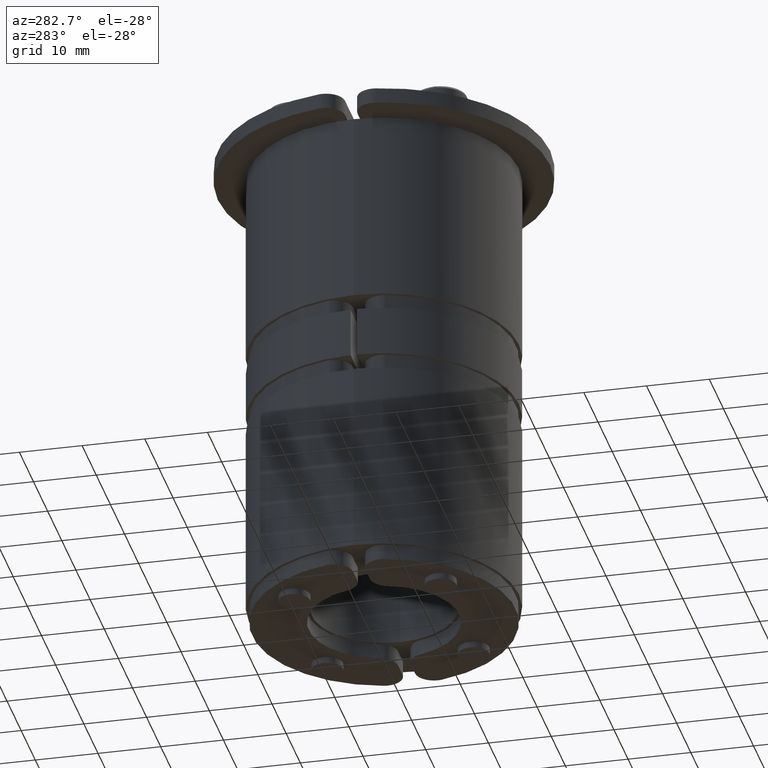
[diagram: clean part render]
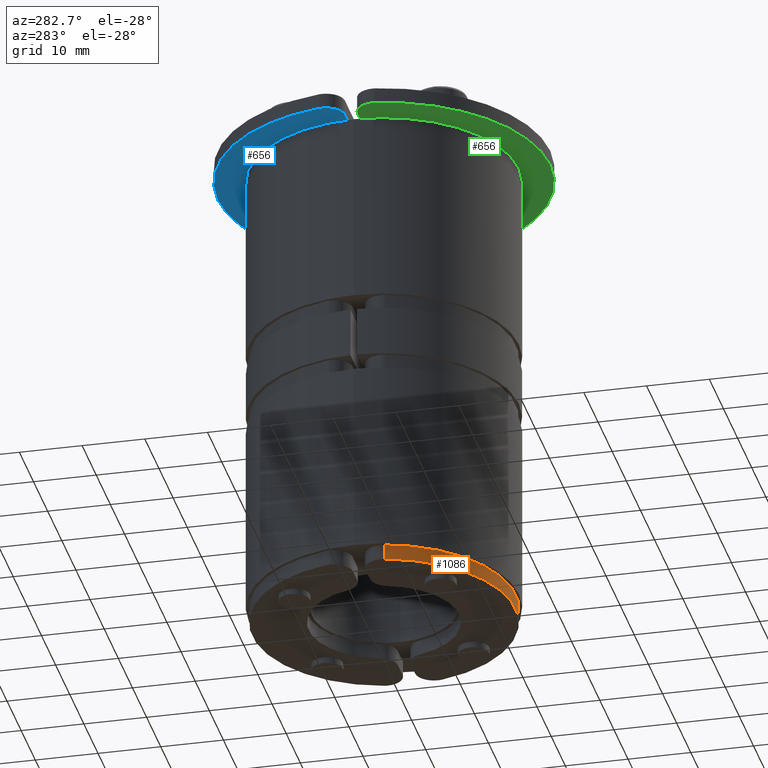
[diagram: same view with three faces highlighted in distinct colors, each labeled with its STEP entity id]
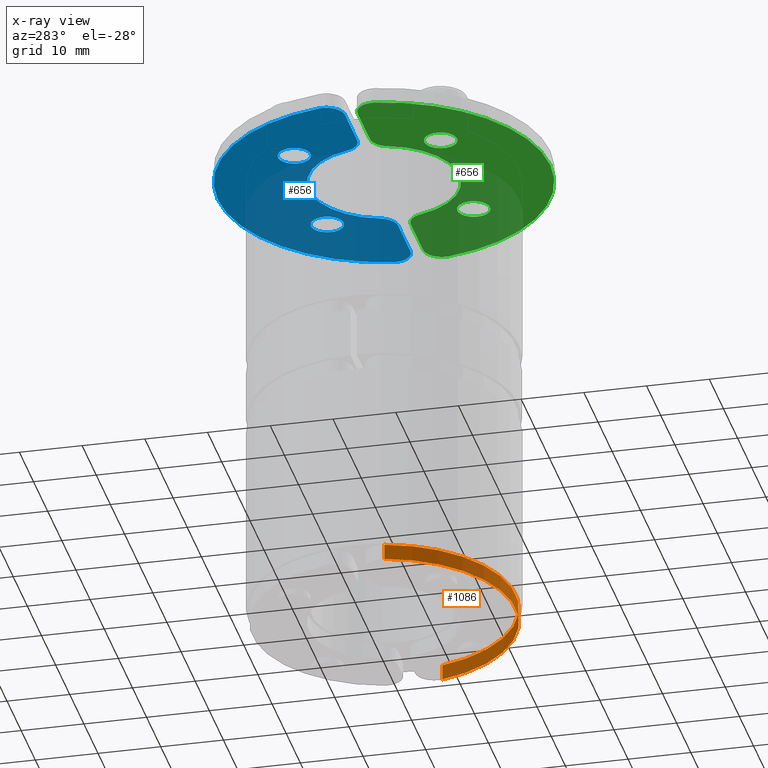
[diagram: x-ray of the same camera — body ghosted, the three highlighted faces saturated]
A machine part, auxiliary view with three faces highlighted in distinct colors.
The next image is the same camera in x-ray (body ghosted, the three faces saturated) — at least one of them is partly hidden behind the body in this view.
Their STEP definitions:

[orange] entity #1086 — the highlighted cylindrical surface (partial cylindrical patch) has radius 21 mm, axis along (0, 0, 1).
#699=CARTESIAN_POINT('',(20.474916903914931,-6.333333333333329,-1.250000000000000));
#700=VERTEX_POINT('',#699);
#708=CARTESIAN_POINT('',(20.474916903914931,-6.333333333333329,1.250000000000000));
#709=VERTEX_POINT('',#708);
#710=CARTESIAN_POINT('',(20.474916903914931,-6.333333333333329,-1.250000000000000));
#711=DIRECTION('',(0.0,0.0,1.0));
#712=VECTOR('',#711,2.500000000000000);
#713=LINE('',#710,#712);
#714=EDGE_CURVE('',#700,#709,#713,.T.);
#741=CARTESIAN_POINT('',(-20.474916903914959,-6.333333333333322,1.250000000000000));
#742=VERTEX_POINT('',#741);
#750=CARTESIAN_POINT('',(-20.474916903914959,-6.333333333333322,-1.250000000000000));
#751=VERTEX_POINT('',#750);
#752=CARTESIAN_POINT('',(-20.474916903914959,-6.333333333333322,-1.250000000000000));
#753=DIRECTION('',(0.0,0.0,1.0));
#754=VECTOR('',#753,2.500000000000000);
#755=LINE('',#752,#754);
#756=EDGE_CURVE('',#751,#742,#755,.T.);
#1063=CARTESIAN_POINT('',(0.0,-10.999999999999993,-1.250000000000000));
#1064=DIRECTION('',(0.0,0.0,1.0));
#1065=DIRECTION('',(1.0,0.0,0.0));
#1066=AXIS2_PLACEMENT_3D('',#1063,#1064,#1065);
#1067=CYLINDRICAL_SURFACE('',#1066,21.0);
#1068=CARTESIAN_POINT('',(0.0,-10.999999999999993,1.250000000000000));
#1069=DIRECTION('',(0.0,0.0,-1.0));
#1070=DIRECTION('',(1.0,0.0,0.0));
#1071=AXIS2_PLACEMENT_3D('',#1068,#1069,#1070);
#1072=CIRCLE('',#1071,21.0);
#1073=EDGE_CURVE('',#742,#709,#1072,.T.);
#1074=ORIENTED_EDGE('',*,*,#1073,.T.);
#1075=ORIENTED_EDGE('',*,*,#714,.F.);
#1076=CARTESIAN_POINT('',(0.0,-10.999999999999993,-1.250000000000000));
#1077=DIRECTION('',(0.0,0.0,1.0));
#1078=DIRECTION('',(1.0,0.0,0.0));
#1079=AXIS2_PLACEMENT_3D('',#1076,#1077,#1078);
#1080=CIRCLE('',#1079,21.0);
#1081=EDGE_CURVE('',#700,#751,#1080,.T.);
#1082=ORIENTED_EDGE('',*,*,#1081,.T.);
#1083=ORIENTED_EDGE('',*,*,#756,.T.);
#1084=EDGE_LOOP('',(#1074,#1075,#1082,#1083));
#1085=FACE_OUTER_BOUND('',#1084,.T.);
#1086=ADVANCED_FACE('',(#1085),#1067,.T.);

[blue] entity #656 — the highlighted planar face has unit normal (0, 0, 1).
#152=CARTESIAN_POINT('',(26.157072353818819,-9.750000000000000,-1.250000000000000));
#153=VERTEX_POINT('',#152);
#162=CARTESIAN_POINT('',(26.113294356433983,-9.239361702127660,-1.250000000000000));
#163=VERTEX_POINT('',#162);
#164=CARTESIAN_POINT('',(23.157072353818819,-9.750000000000000,-1.250000000000000));
#165=DIRECTION('',(0.0,0.0,1.0));
#166=DIRECTION('',(1.0,0.0,0.0));
#167=AXIS2_PLACEMENT_3D('',#164,#165,#166);
#168=CIRCLE('',#167,3.0);
#169=EDGE_CURVE('',#153,#163,#168,.T.);
#196=CARTESIAN_POINT('',(-26.157072353818819,-9.750000000000000,-1.250000000000000));
#197=VERTEX_POINT('',#196);
#213=CARTESIAN_POINT('',(-26.113294356433983,-9.239361702127653,-1.250000000000000));
#214=VERTEX_POINT('',#213);
#221=CARTESIAN_POINT('',(-23.157072353818819,-9.750000000000000,-1.250000000000000));
#222=DIRECTION('',(0.0,0.0,1.0));
#223=DIRECTION('',(1.0,0.0,0.0));
#224=AXIS2_PLACEMENT_3D('',#221,#222,#223);
#225=CIRCLE('',#224,3.0);
#226=EDGE_CURVE('',#214,#197,#225,.T.);
#236=CARTESIAN_POINT('',(-9.067261889578036,-2.082738110421968,-1.250000000000000));
#237=VERTEX_POINT('',#236);
#246=CARTESIAN_POINT('',(-14.267261889578036,-2.082738110421968,-1.250000000000000));
#247=VERTEX_POINT('',#246);
#248=CARTESIAN_POINT('',(-11.667261889578036,-2.082738110421968,-1.250000000000000));
#249=DIRECTION('',(0.0,0.0,1.0));
#250=DIRECTION('',(1.0,0.0,0.0));
#251=AXIS2_PLACEMENT_3D('',#248,#249,#250);
#252=CIRCLE('',#251,2.600000000000000);
#253=EDGE_CURVE('',#247,#237,#252,.T.);
#278=CARTESIAN_POINT('',(14.267261889578032,-2.082738110421966,-1.250000000000000));
#279=VERTEX_POINT('',#278);
#288=CARTESIAN_POINT('',(9.067261889578033,-2.082738110421966,-1.250000000000000));
#289=VERTEX_POINT('',#288);
#290=CARTESIAN_POINT('',(11.667261889578032,-2.082738110421966,-1.250000000000000));
#291=DIRECTION('',(0.0,0.0,1.0));
#292=DIRECTION('',(1.0,0.0,0.0));
#293=AXIS2_PLACEMENT_3D('',#290,#291,#292);
#294=CIRCLE('',#293,2.600000000000000);
#295=EDGE_CURVE('',#289,#279,#294,.T.);
#329=CARTESIAN_POINT('',(11.667261889578032,-2.082738110421966,-1.250000000000000));
#330=DIRECTION('',(0.0,0.0,1.0));
#331=DIRECTION('',(1.0,0.0,0.0));
#332=AXIS2_PLACEMENT_3D('',#329,#330,#331);
#333=CIRCLE('',#332,2.600000000000000);
#334=EDGE_CURVE('',#279,#289,#333,.T.);
#353=CARTESIAN_POINT('',(-11.667261889578036,-2.082738110421968,-1.250000000000000));
#354=DIRECTION('',(0.0,0.0,1.0));
#355=DIRECTION('',(1.0,0.0,0.0));
#356=AXIS2_PLACEMENT_3D('',#353,#354,#355);
#357=CIRCLE('',#356,2.600000000000000);
#358=EDGE_CURVE('',#237,#247,#357,.T.);
#379=CARTESIAN_POINT('',(11.565465835840769,-10.549999999999997,-1.250000000000000));
#380=VERTEX_POINT('',#379);
#387=CARTESIAN_POINT('',(14.456832294800961,-12.750000000000000,-1.250000000000000));
#388=VERTEX_POINT('',#387);
#389=CARTESIAN_POINT('',(14.456832294800961,-9.750000000000000,-1.250000000000000));
#390=DIRECTION('',(0.0,0.0,1.0));
#391=DIRECTION('',(1.0,0.0,0.0));
#392=AXIS2_PLACEMENT_3D('',#389,#390,#391);
#393=CIRCLE('',#392,3.0);
#394=EDGE_CURVE('',#380,#388,#393,.T.);
#419=CARTESIAN_POINT('',(-11.565465835840769,-10.549999999999997,-1.250000000000000));
#420=VERTEX_POINT('',#419);
#427=CARTESIAN_POINT('',(0.0,-13.750000000000000,-1.250000000000000));
#428=DIRECTION('',(0.0,0.0,-1.0));
#429=DIRECTION('',(1.0,0.0,0.0));
#430=AXIS2_PLACEMENT_3D('',#427,#428,#429);
#431=CIRCLE('',#430,12.0);
#432=EDGE_CURVE('',#420,#380,#431,.T.);
#452=CARTESIAN_POINT('',(-14.456832294800961,-12.750000000000000,-1.250000000000000));
#453=VERTEX_POINT('',#452);
#460=CARTESIAN_POINT('',(-14.456832294800961,-9.750000000000000,-1.250000000000000));
#461=DIRECTION('',(0.0,0.0,1.0));
#462=DIRECTION('',(1.0,0.0,0.0));
#463=AXIS2_PLACEMENT_3D('',#460,#461,#462);
#464=CIRCLE('',#463,3.0);
#465=EDGE_CURVE('',#453,#420,#464,.T.);
#484=CARTESIAN_POINT('',(-23.157072353818819,-12.750000000000000,-1.250000000000000));
#485=VERTEX_POINT('',#484);
#492=CARTESIAN_POINT('',(-23.157072353818819,-12.750000000000000,-1.250000000000000));
#493=DIRECTION('',(1.0,0.0,0.0));
#494=VECTOR('',#493,8.700240059017858);
#495=LINE('',#492,#494);
#496=EDGE_CURVE('',#485,#453,#495,.T.);
#508=CARTESIAN_POINT('',(-23.157072353818819,-9.750000000000000,-1.250000000000000));
#509=DIRECTION('',(0.0,0.0,1.0));
#510=DIRECTION('',(1.0,0.0,0.0));
#511=AXIS2_PLACEMENT_3D('',#508,#509,#510);
#512=CIRCLE('',#511,3.0);
#513=EDGE_CURVE('',#197,#485,#512,.T.);
#539=CARTESIAN_POINT('',(0.0,-13.750000000000000,-1.250000000000000));
#540=DIRECTION('',(0.0,0.0,1.0));
#541=DIRECTION('',(1.0,0.0,0.0));
#542=AXIS2_PLACEMENT_3D('',#539,#540,#541);
#543=CIRCLE('',#542,26.500000000000000);
#544=EDGE_CURVE('',#163,#214,#543,.T.);
#565=CARTESIAN_POINT('',(23.157072353818791,-12.750000000000000,-1.250000000000000));
#566=VERTEX_POINT('',#565);
#573=CARTESIAN_POINT('',(23.157072353818819,-9.750000000000000,-1.250000000000000));
#574=DIRECTION('',(0.0,0.0,1.0));
#575=DIRECTION('',(1.0,0.0,0.0));
#576=AXIS2_PLACEMENT_3D('',#573,#574,#575);
#577=CIRCLE('',#576,3.0);
#578=EDGE_CURVE('',#566,#153,#577,.T.);
#595=CARTESIAN_POINT('',(14.456832294800961,-12.750000000000000,-1.250000000000000));
#596=DIRECTION('',(1.0,0.0,0.0));
#597=VECTOR('',#596,8.700240059017830);
#598=LINE('',#595,#597);
#599=EDGE_CURVE('',#388,#566,#598,.T.);
#631=CARTESIAN_POINT('',(-1.136868E-013,-2.432917308728335,-1.250000000000000));
#632=DIRECTION('',(0.0,0.0,1.0));
#633=DIRECTION('',(1.0,0.0,0.0));
#634=AXIS2_PLACEMENT_3D('',#631,#632,#633);
#635=PLANE('',#634);
#636=ORIENTED_EDGE('',*,*,#599,.F.);
#637=ORIENTED_EDGE('',*,*,#394,.F.);
#638=ORIENTED_EDGE('',*,*,#432,.F.);
#639=ORIENTED_EDGE('',*,*,#465,.F.);
#640=ORIENTED_EDGE('',*,*,#496,.F.);
#641=ORIENTED_EDGE('',*,*,#513,.F.);
#642=ORIENTED_EDGE('',*,*,#226,.F.);
#643=ORIENTED_EDGE('',*,*,#544,.F.);
#644=ORIENTED_EDGE('',*,*,#169,.F.);
#645=ORIENTED_EDGE('',*,*,#578,.F.);
#646=EDGE_LOOP('',(#636,#637,#638,#639,#640,#641,#642,#643,#644,#645));
#647=FACE_OUTER_BOUND('',#646,.T.);
#648=ORIENTED_EDGE('',*,*,#334,.T.);
#649=ORIENTED_EDGE('',*,*,#295,.T.);
#650=EDGE_LOOP('',(#648,#649));
#651=FACE_BOUND('',#650,.T.);
#652=ORIENTED_EDGE('',*,*,#358,.T.);
#653=ORIENTED_EDGE('',*,*,#253,.T.);
#654=EDGE_LOOP('',(#652,#653));
#655=FACE_BOUND('',#654,.T.);
#656=ADVANCED_FACE('',(#647,#651,#655),#635,.F.);

[green] entity #656 — the highlighted planar face has unit normal (0, 0, 1).
#152=CARTESIAN_POINT('',(26.157072353818819,-9.750000000000000,-1.250000000000000));
#153=VERTEX_POINT('',#152);
#162=CARTESIAN_POINT('',(26.113294356433983,-9.239361702127660,-1.250000000000000));
#163=VERTEX_POINT('',#162);
#164=CARTESIAN_POINT('',(23.157072353818819,-9.750000000000000,-1.250000000000000));
#165=DIRECTION('',(0.0,0.0,1.0));
#166=DIRECTION('',(1.0,0.0,0.0));
#167=AXIS2_PLACEMENT_3D('',#164,#165,#166);
#168=CIRCLE('',#167,3.0);
#169=EDGE_CURVE('',#153,#163,#168,.T.);
#196=CARTESIAN_POINT('',(-26.157072353818819,-9.750000000000000,-1.250000000000000));
#197=VERTEX_POINT('',#196);
#213=CARTESIAN_POINT('',(-26.113294356433983,-9.239361702127653,-1.250000000000000));
#214=VERTEX_POINT('',#213);
#221=CARTESIAN_POINT('',(-23.157072353818819,-9.750000000000000,-1.250000000000000));
#222=DIRECTION('',(0.0,0.0,1.0));
#223=DIRECTION('',(1.0,0.0,0.0));
#224=AXIS2_PLACEMENT_3D('',#221,#222,#223);
#225=CIRCLE('',#224,3.0);
#226=EDGE_CURVE('',#214,#197,#225,.T.);
#236=CARTESIAN_POINT('',(-9.067261889578036,-2.082738110421968,-1.250000000000000));
#237=VERTEX_POINT('',#236);
#246=CARTESIAN_POINT('',(-14.267261889578036,-2.082738110421968,-1.250000000000000));
#247=VERTEX_POINT('',#246);
#248=CARTESIAN_POINT('',(-11.667261889578036,-2.082738110421968,-1.250000000000000));
#249=DIRECTION('',(0.0,0.0,1.0));
#250=DIRECTION('',(1.0,0.0,0.0));
#251=AXIS2_PLACEMENT_3D('',#248,#249,#250);
#252=CIRCLE('',#251,2.600000000000000);
#253=EDGE_CURVE('',#247,#237,#252,.T.);
#278=CARTESIAN_POINT('',(14.267261889578032,-2.082738110421966,-1.250000000000000));
#279=VERTEX_POINT('',#278);
#288=CARTESIAN_POINT('',(9.067261889578033,-2.082738110421966,-1.250000000000000));
#289=VERTEX_POINT('',#288);
#290=CARTESIAN_POINT('',(11.667261889578032,-2.082738110421966,-1.250000000000000));
#291=DIRECTION('',(0.0,0.0,1.0));
#292=DIRECTION('',(1.0,0.0,0.0));
#293=AXIS2_PLACEMENT_3D('',#290,#291,#292);
#294=CIRCLE('',#293,2.600000000000000);
#295=EDGE_CURVE('',#289,#279,#294,.T.);
#329=CARTESIAN_POINT('',(11.667261889578032,-2.082738110421966,-1.250000000000000));
#330=DIRECTION('',(0.0,0.0,1.0));
#331=DIRECTION('',(1.0,0.0,0.0));
#332=AXIS2_PLACEMENT_3D('',#329,#330,#331);
#333=CIRCLE('',#332,2.600000000000000);
#334=EDGE_CURVE('',#279,#289,#333,.T.);
#353=CARTESIAN_POINT('',(-11.667261889578036,-2.082738110421968,-1.250000000000000));
#354=DIRECTION('',(0.0,0.0,1.0));
#355=DIRECTION('',(1.0,0.0,0.0));
#356=AXIS2_PLACEMENT_3D('',#353,#354,#355);
#357=CIRCLE('',#356,2.600000000000000);
#358=EDGE_CURVE('',#237,#247,#357,.T.);
#379=CARTESIAN_POINT('',(11.565465835840769,-10.549999999999997,-1.250000000000000));
#380=VERTEX_POINT('',#379);
#387=CARTESIAN_POINT('',(14.456832294800961,-12.750000000000000,-1.250000000000000));
#388=VERTEX_POINT('',#387);
#389=CARTESIAN_POINT('',(14.456832294800961,-9.750000000000000,-1.250000000000000));
#390=DIRECTION('',(0.0,0.0,1.0));
#391=DIRECTION('',(1.0,0.0,0.0));
#392=AXIS2_PLACEMENT_3D('',#389,#390,#391);
#393=CIRCLE('',#392,3.0);
#394=EDGE_CURVE('',#380,#388,#393,.T.);
#419=CARTESIAN_POINT('',(-11.565465835840769,-10.549999999999997,-1.250000000000000));
#420=VERTEX_POINT('',#419);
#427=CARTESIAN_POINT('',(0.0,-13.750000000000000,-1.250000000000000));
#428=DIRECTION('',(0.0,0.0,-1.0));
#429=DIRECTION('',(1.0,0.0,0.0));
#430=AXIS2_PLACEMENT_3D('',#427,#428,#429);
#431=CIRCLE('',#430,12.0);
#432=EDGE_CURVE('',#420,#380,#431,.T.);
#452=CARTESIAN_POINT('',(-14.456832294800961,-12.750000000000000,-1.250000000000000));
#453=VERTEX_POINT('',#452);
#460=CARTESIAN_POINT('',(-14.456832294800961,-9.750000000000000,-1.250000000000000));
#461=DIRECTION('',(0.0,0.0,1.0));
#462=DIRECTION('',(1.0,0.0,0.0));
#463=AXIS2_PLACEMENT_3D('',#460,#461,#462);
#464=CIRCLE('',#463,3.0);
#465=EDGE_CURVE('',#453,#420,#464,.T.);
#484=CARTESIAN_POINT('',(-23.157072353818819,-12.750000000000000,-1.250000000000000));
#485=VERTEX_POINT('',#484);
#492=CARTESIAN_POINT('',(-23.157072353818819,-12.750000000000000,-1.250000000000000));
#493=DIRECTION('',(1.0,0.0,0.0));
#494=VECTOR('',#493,8.700240059017858);
#495=LINE('',#492,#494);
#496=EDGE_CURVE('',#485,#453,#495,.T.);
#508=CARTESIAN_POINT('',(-23.157072353818819,-9.750000000000000,-1.250000000000000));
#509=DIRECTION('',(0.0,0.0,1.0));
#510=DIRECTION('',(1.0,0.0,0.0));
#511=AXIS2_PLACEMENT_3D('',#508,#509,#510);
#512=CIRCLE('',#511,3.0);
#513=EDGE_CURVE('',#197,#485,#512,.T.);
#539=CARTESIAN_POINT('',(0.0,-13.750000000000000,-1.250000000000000));
#540=DIRECTION('',(0.0,0.0,1.0));
#541=DIRECTION('',(1.0,0.0,0.0));
#542=AXIS2_PLACEMENT_3D('',#539,#540,#541);
#543=CIRCLE('',#542,26.500000000000000);
#544=EDGE_CURVE('',#163,#214,#543,.T.);
#565=CARTESIAN_POINT('',(23.157072353818791,-12.750000000000000,-1.250000000000000));
#566=VERTEX_POINT('',#565);
#573=CARTESIAN_POINT('',(23.157072353818819,-9.750000000000000,-1.250000000000000));
#574=DIRECTION('',(0.0,0.0,1.0));
#575=DIRECTION('',(1.0,0.0,0.0));
#576=AXIS2_PLACEMENT_3D('',#573,#574,#575);
#577=CIRCLE('',#576,3.0);
#578=EDGE_CURVE('',#566,#153,#577,.T.);
#595=CARTESIAN_POINT('',(14.456832294800961,-12.750000000000000,-1.250000000000000));
#596=DIRECTION('',(1.0,0.0,0.0));
#597=VECTOR('',#596,8.700240059017830);
#598=LINE('',#595,#597);
#599=EDGE_CURVE('',#388,#566,#598,.T.);
#631=CARTESIAN_POINT('',(-1.136868E-013,-2.432917308728335,-1.250000000000000));
#632=DIRECTION('',(0.0,0.0,1.0));
#633=DIRECTION('',(1.0,0.0,0.0));
#634=AXIS2_PLACEMENT_3D('',#631,#632,#633);
#635=PLANE('',#634);
#636=ORIENTED_EDGE('',*,*,#599,.F.);
#637=ORIENTED_EDGE('',*,*,#394,.F.);
#638=ORIENTED_EDGE('',*,*,#432,.F.);
#639=ORIENTED_EDGE('',*,*,#465,.F.);
#640=ORIENTED_EDGE('',*,*,#496,.F.);
#641=ORIENTED_EDGE('',*,*,#513,.F.);
#642=ORIENTED_EDGE('',*,*,#226,.F.);
#643=ORIENTED_EDGE('',*,*,#544,.F.);
#644=ORIENTED_EDGE('',*,*,#169,.F.);
#645=ORIENTED_EDGE('',*,*,#578,.F.);
#646=EDGE_LOOP('',(#636,#637,#638,#639,#640,#641,#642,#643,#644,#645));
#647=FACE_OUTER_BOUND('',#646,.T.);
#648=ORIENTED_EDGE('',*,*,#334,.T.);
#649=ORIENTED_EDGE('',*,*,#295,.T.);
#650=EDGE_LOOP('',(#648,#649));
#651=FACE_BOUND('',#650,.T.);
#652=ORIENTED_EDGE('',*,*,#358,.T.);
#653=ORIENTED_EDGE('',*,*,#253,.T.);
#654=EDGE_LOOP('',(#652,#653));
#655=FACE_BOUND('',#654,.T.);
#656=ADVANCED_FACE('',(#647,#651,#655),#635,.F.);